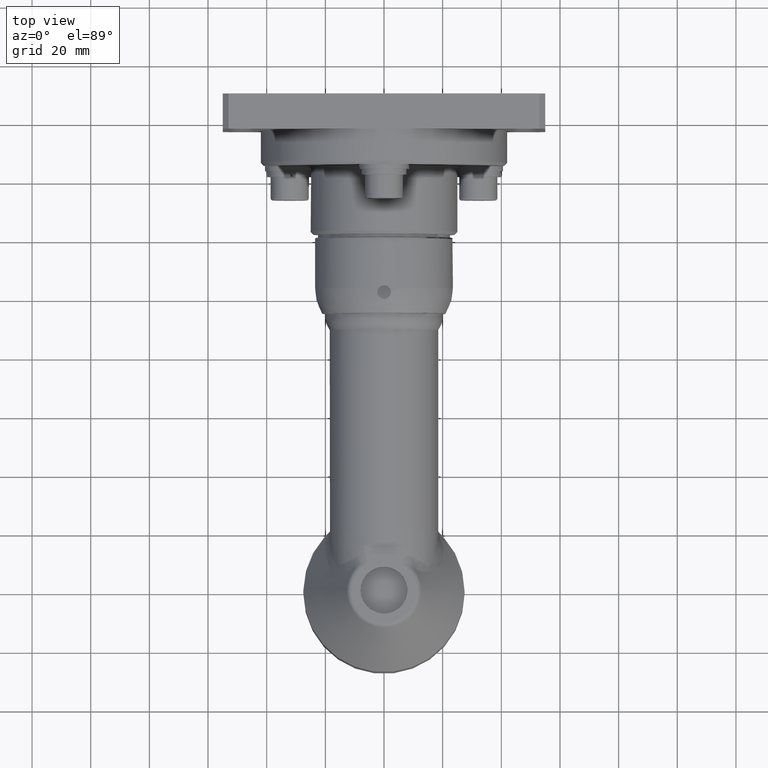
[diagram: clean part render]
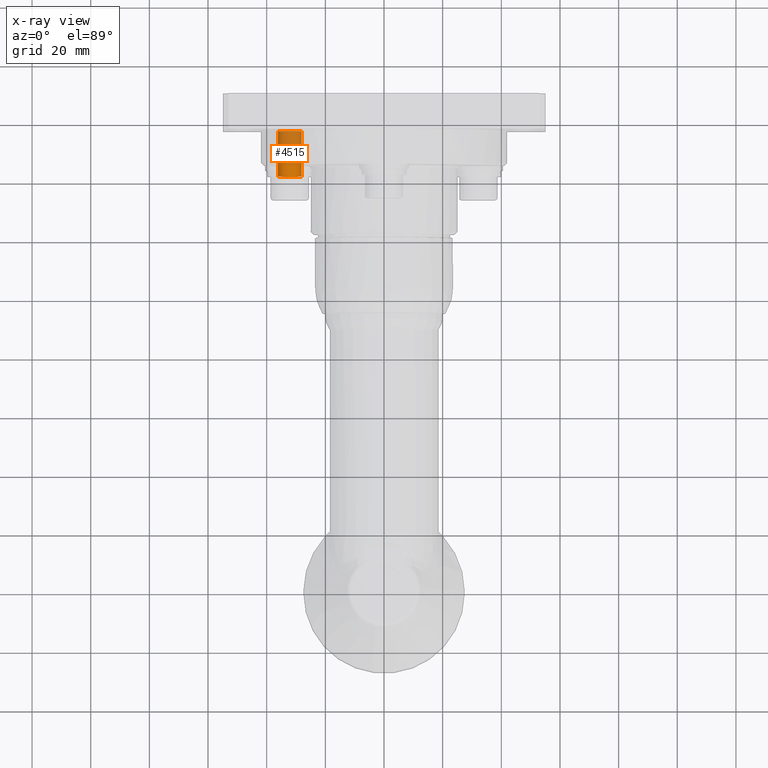
[diagram: x-ray — body ghosted, one internal face saturated and labeled with its STEP entity id]
A machine part, top view, then the same camera in x-ray: the body is ghosted and one INTERNAL B-rep face — a face not visible from any outside direction — is saturated and labeled: STEP entity #4515.
In plain terms, the highlighted cylindrical surface (bore or boss wall) has radius 4 mm, axis along (-0, 1, -0).
Its self-contained STEP definition (entity closure, byte-faithful):
#373=LINE('',#9005,#582);
#582=VECTOR('',#6580,4.);
#665=CYLINDRICAL_SURFACE('',#5148,4.);
#960=FACE_OUTER_BOUND('',#1260,.T.);
#1260=EDGE_LOOP('',(#4114,#4115,#4116,#4117,#4118,#4119));
#1547=CIRCLE('',#4977,4.);
#1627=CIRCLE('',#5144,4.);
#1628=CIRCLE('',#5145,4.);
#1629=CIRCLE('',#5146,4.);
#1977=VERTEX_POINT('',#8553);
#2092=VERTEX_POINT('',#8996);
#2093=VERTEX_POINT('',#8998);
#2094=VERTEX_POINT('',#9000);
#2583=EDGE_CURVE('',#1977,#1977,#1547,.T.);
#2771=EDGE_CURVE('',#2092,#2093,#1627,.T.);
#2772=EDGE_CURVE('',#2093,#2094,#1628,.T.);
#2773=EDGE_CURVE('',#2094,#2092,#1629,.T.);
#2774=EDGE_CURVE('',#1977,#2094,#373,.T.);
#4114=ORIENTED_EDGE('',*,*,#2583,.F.);
#4115=ORIENTED_EDGE('',*,*,#2774,.T.);
#4116=ORIENTED_EDGE('',*,*,#2772,.F.);
#4117=ORIENTED_EDGE('',*,*,#2771,.F.);
#4118=ORIENTED_EDGE('',*,*,#2773,.F.);
#4119=ORIENTED_EDGE('',*,*,#2774,.F.);
#4515=ADVANCED_FACE('',(#960),#665,.T.);
#4977=AXIS2_PLACEMENT_3D('',#8554,#6163,#6164);
#5144=AXIS2_PLACEMENT_3D('',#8999,#6570,#6571);
#5145=AXIS2_PLACEMENT_3D('',#9001,#6572,#6573);
#5146=AXIS2_PLACEMENT_3D('',#9002,#6574,#6575);
#5148=AXIS2_PLACEMENT_3D('',#9004,#6578,#6579);
#6163=DIRECTION('center_axis',(-4.73983281220063E-16,1.,-1.88737914186277E-15));
#6164=DIRECTION('ref_axis',(1.,1.18078783425247E-14,-1.88434337276339E-15));
#6570=DIRECTION('center_axis',(1.18085565380217E-14,-1.,1.88434337276341E-15));
#6571=DIRECTION('ref_axis',(-1.,-1.18078783425247E-14,1.76187869284865E-15));
#6572=DIRECTION('center_axis',(1.18085565380217E-14,-1.,1.88434337276341E-15));
#6573=DIRECTION('ref_axis',(-1.,-1.18078783425247E-14,1.76187869284865E-15));
#6574=DIRECTION('center_axis',(1.18085565380217E-14,-1.,1.88434337276341E-15));
#6575=DIRECTION('ref_axis',(-1.,-1.18078783425247E-14,1.76187869284865E-15));
#6578=DIRECTION('center_axis',(-1.18085565380217E-14,1.,-1.88434337276341E-15));
#6579=DIRECTION('ref_axis',(1.,1.18078783425247E-14,-1.88434337276339E-15));
#6580=DIRECTION('',(1.18085565380217E-14,-1.,1.88434337276341E-15));
#8553=CARTESIAN_POINT('',(-36.1476315703773,156.999999999999,-11.0693172515436));
#8554=CARTESIAN_POINT('Origin',(-32.1476315703774,156.999999999999,-11.0693172515436));
#8996=CARTESIAN_POINT('',(-32.1476315703772,141.499999999999,-15.0693172515436));
#8998=CARTESIAN_POINT('',(-28.1476315703772,141.499999999999,-11.0693172515436));
#8999=CARTESIAN_POINT('Origin',(-32.1476315703772,141.499999999999,-11.0693172515436));
#9000=CARTESIAN_POINT('',(-36.1476315703772,141.499999999999,-11.0693172515436));
#9001=CARTESIAN_POINT('Origin',(-32.1476315703772,141.499999999999,-11.0693172515436));
#9002=CARTESIAN_POINT('Origin',(-32.1476315703772,141.499999999999,-11.0693172515436));
#9004=CARTESIAN_POINT('Origin',(-32.1476315703773,155.774999999999,-11.0693172515436));
#9005=CARTESIAN_POINT('',(-36.1476315703773,155.774999999999,-11.0693172515436));